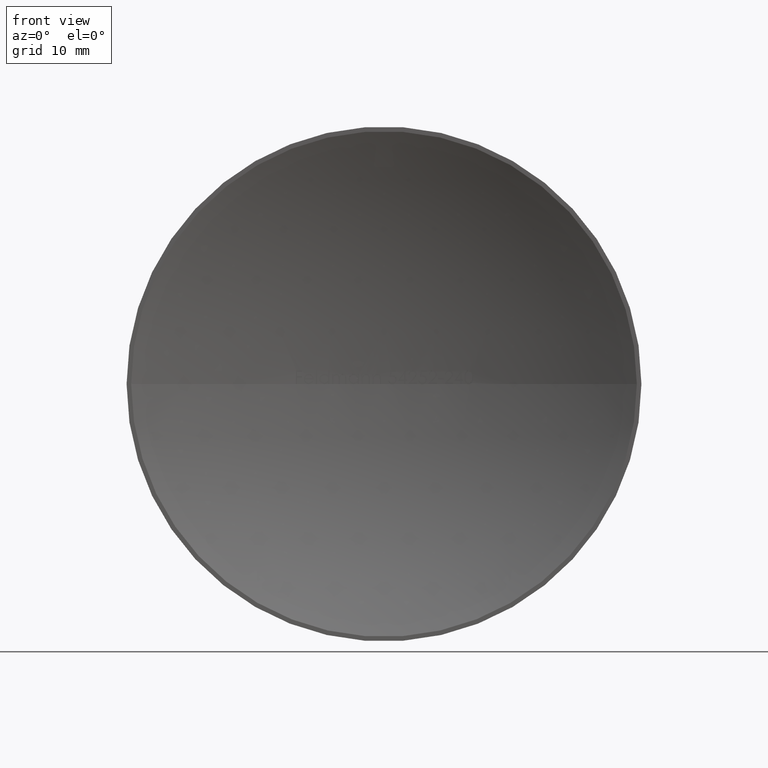
[diagram: clean part render]
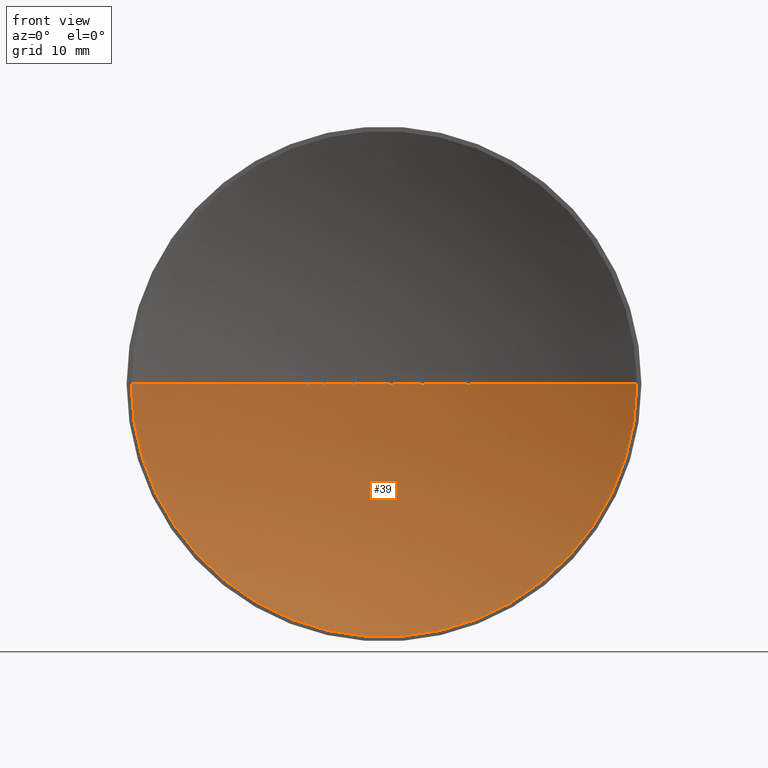
[diagram: same view with one face highlighted and labeled with its STEP entity id]
A machine part, front view. The second image highlights one B-rep face of the part: STEP entity #39.
In plain terms, the highlighted spherical surface has radius 57.3333 mm.
Its self-contained STEP definition (entity closure, byte-faithful):
#39 = ADVANCED_FACE ( 'NONE', ( #6550 ), #2754, .F. ) ;
#41 = DIRECTION ( 'NONE',  ( -1.224646799147353200E-016, 1.012314239312398700E-030, -1.000000000000000000 ) ) ;
#51 = B_SPLINE_CURVE_WITH_KNOTS ( 'NONE', 3,
 ( #5666, #1780, #10556, #6823 ),
 .UNSPECIFIED., .F., .F.,
 ( 4, 4 ),
 ( 0.8200755552327317900, 1.000000000000000000 ),
 .UNSPECIFIED. ) ;
#79 = CIRCLE ( 'NONE', #9924, 57.33333333333327900 ) ;
#135 = VERTEX_POINT ( 'NONE', #2423 ) ;
#142 = CARTESIAN_POINT ( 'NONE',  ( 1.653234614285870000E-014, -51.33333333333328600, 0.0000000000000000000 ) ) ;
#144 = CARTESIAN_POINT ( 'NONE',  ( 1.653234614285870000E-014, -51.33333333333328600, 0.0000000000000000000 ) ) ;
#164 = CARTESIAN_POINT ( 'NONE',  ( 1.653234614285870000E-014, -51.33333333333328600, 0.0000000000000000000 ) ) ;
#178 = CIRCLE ( 'NONE', #8383, 57.33333333333327900 ) ;
#187 = AXIS2_PLACEMENT_3D ( 'NONE', #6225, #4470, #12106 ) ;
#193 = DIRECTION ( 'NONE',  ( -1.000000000000000000, 0.0000000000000000000, 1.224646799147353000E-016 ) ) ;
#229 = ORIENTED_EDGE ( 'NONE', *, *, #4466, .T. ) ;
#237 = CARTESIAN_POINT ( 'NONE',  ( -1.161792200854682600, 5.988227618834947000, 0.0000000000000000000 ) ) ;
#263 = CIRCLE ( 'NONE', #8748, 57.33333333333327900 ) ;
#276 = CARTESIAN_POINT ( 'NONE',  ( 0.7312332058460994100, 5.995331647543360500, -0.02844725985276615200 ) ) ;
#293 = ORIENTED_EDGE ( 'NONE', *, *, #11744, .T. ) ;
#294 = EDGE_CURVE ( 'NONE', #9977, #135, #2118, .T. ) ;
#323 = CIRCLE ( 'NONE', #8505, 57.33333333333327900 ) ;
#342 = CARTESIAN_POINT ( 'NONE',  ( 1.653234614285870000E-014, -51.33333333333328600, 0.0000000000000000000 ) ) ;
#346 = DIRECTION ( 'NONE',  ( -1.000000000000000000, 0.0000000000000000000, 1.224646799147353000E-016 ) ) ;
#379 = CARTESIAN_POINT ( 'NONE',  ( -1.043068910256390600, 5.990510905862334000, 3.573942668229427900E-015 ) ) ;
#409 = CIRCLE ( 'NONE', #187, 25.53429066960745100 ) ;
#420 = AXIS2_PLACEMENT_3D ( 'NONE', #7171, #4276, #2235 ) ;
#461 = DIRECTION ( 'NONE',  ( 1.000000000000000000, 0.0000000000000000000, 0.0000000000000000000 ) ) ;
#505 = ORIENTED_EDGE ( 'NONE', *, *, #5393, .T. ) ;
#512 = CARTESIAN_POINT ( 'NONE',  ( -7.604482670955203400, 5.493444993938180000, -0.01679789475630296900 ) ) ;
#535 = AXIS2_PLACEMENT_3D ( 'NONE', #4750, #10582, #751 ) ;
#633 = DIRECTION ( 'NONE',  ( 0.0000000000000000000, 0.0000000000000000000, 1.000000000000000000 ) ) ;
#640 = CARTESIAN_POINT ( 'NONE',  ( -3.159460379140815800, 5.912894107119662100, -0.01013785956231215300 ) ) ;
#680 = DIRECTION ( 'NONE',  ( 1.000000000000000000, 0.0000000000000000000, 0.0000000000000000000 ) ) ;
#707 = CARTESIAN_POINT ( 'NONE',  ( 5.351028311965832200, 5.749743030118298600, 4.660440450265662700E-015 ) ) ;
#717 = VERTEX_POINT ( 'NONE', #10563 ) ;
#726 = VERTEX_POINT ( 'NONE', #813 ) ;
#737 = EDGE_CURVE ( 'NONE', #2668, #8571, #9165, .T. ) ;
#751 = DIRECTION ( 'NONE',  ( 1.000000000000000000, 0.0000000000000000000, 0.0000000000000000000 ) ) ;
#770 = DIRECTION ( 'NONE',  ( 1.000000000000000000, 0.0000000000000000000, 0.0000000000000000000 ) ) ;
#789 = CARTESIAN_POINT ( 'NONE',  ( -6.034217247596131100, 5.681568628016893100, -0.01696047008547012900 ) ) ;
#813 = CARTESIAN_POINT ( 'NONE',  ( -3.066134982638872400, 5.917951715316909200, -0.01696047008546984100 ) ) ;
#825 = VERTEX_POINT ( 'NONE', #379 ) ;
#833 = CARTESIAN_POINT ( 'NONE',  ( -5.976068151845779200, 5.687694849123642100, -0.01425468239630399900 ) ) ;
#879 = AXIS2_PLACEMENT_3D ( 'NONE', #142, #11069, #193 ) ;
#899 = EDGE_CURVE ( 'NONE', #12090, #11210, #10843, .T. ) ;
#961 = EDGE_CURVE ( 'NONE', #1879, #2668, #51, .T. ) ;
#972 = EDGE_CURVE ( 'NONE', #135, #9186, #263, .T. ) ;
#1035 = DIRECTION ( 'NONE',  ( -1.000000000000000000, 0.0000000000000000000, 1.224646799147353000E-016 ) ) ;
#1049 = DIRECTION ( 'NONE',  ( 1.000000000000000000, 0.0000000000000000000, 0.0000000000000000000 ) ) ;
#1116 = AXIS2_PLACEMENT_3D ( 'NONE', #2158, #5066, #3155 ) ;
#1127 = CARTESIAN_POINT ( 'NONE',  ( 3.315771901709419800, 5.904038791939368200, 4.673037637654739700E-015 ) ) ;
#1138 = DIRECTION ( 'NONE',  ( 1.000000000000000000, 0.0000000000000000000, 0.0000000000000000000 ) ) ;
#1164 = DIRECTION ( 'NONE',  ( 1.000000000000000000, 0.0000000000000000000, 0.0000000000000000000 ) ) ;
#1349 = ORIENTED_EDGE ( 'NONE', *, *, #7584, .T. ) ;
#1368 = CARTESIAN_POINT ( 'NONE',  ( 1.653234614285870000E-014, -51.33333333333328600, 0.0000000000000000000 ) ) ;
#1396 = EDGE_CURVE ( 'NONE', #3171, #825, #11419, .T. ) ;
#1433 = DIRECTION ( 'NONE',  ( 0.0000000000000000000, 0.0000000000000000000, 1.000000000000000000 ) ) ;
#1443 = VERTEX_POINT ( 'NONE', #4334 ) ;
#1468 = VERTEX_POINT ( 'NONE', #6382 ) ;
#1474 = DIRECTION ( 'NONE',  ( 0.0000000000000000000, 0.0000000000000000000, 1.000000000000000000 ) ) ;
#1499 = CARTESIAN_POINT ( 'NONE',  ( 1.653234614285870000E-014, -51.33333333333328600, 0.0000000000000000000 ) ) ;
#1506 = CARTESIAN_POINT ( 'NONE',  ( -7.582462536169752600, 5.496387347288661300, -0.01618432352938536900 ) ) ;
#1510 = CARTESIAN_POINT ( 'NONE',  ( -0.3137686965811757900, 5.999141411057000700, 3.529814375642770600E-015 ) ) ;
#1524 = CIRCLE ( 'NONE', #3523, 57.33333333333327900 ) ;
#1527 = VERTEX_POINT ( 'NONE', #2688 ) ;
#1557 = DIRECTION ( 'NONE',  ( -1.000000000000000000, 0.0000000000000000000, 1.224646799147353000E-016 ) ) ;
#1584 = CIRCLE ( 'NONE', #4172, 57.33333333333327900 ) ;
#1588 = VERTEX_POINT ( 'NONE', #2809 ) ;
#1603 = AXIS2_PLACEMENT_3D ( 'NONE', #9561, #10483, #8557 ) ;
#1605 = VERTEX_POINT ( 'NONE', #7720 ) ;
#1638 = ORIENTED_EDGE ( 'NONE', *, *, #1790, .T. ) ;
#1688 = EDGE_CURVE ( 'NONE', #4010, #6937, #5647, .T. ) ;
#1698 = CIRCLE ( 'NONE', #5976, 57.33333333333327900 ) ;
#1707 = CARTESIAN_POINT ( 'NONE',  ( -3.007953983192035400, 5.921039931797938700, -0.01425383591001444900 ) ) ;
#1723 = DIRECTION ( 'NONE',  ( 0.0000000000000000000, -0.0000000000000000000, 1.000000000000000000 ) ) ;
#1728 = ORIENTED_EDGE ( 'NONE', *, *, #9061, .T. ) ;
#1730 = AXIS2_PLACEMENT_3D ( 'NONE', #1499, #7290, #2397 ) ;
#1780 = CARTESIAN_POINT ( 'NONE',  ( 8.668816836237534000, 5.340870184003131600, -0.02263895338576834400 ) ) ;
#1790 = EDGE_CURVE ( 'NONE', #825, #11646, #1524, .T. ) ;
#1802 = CARTESIAN_POINT ( 'NONE',  ( -7.469798920158003100, 5.511307557889711700, 9.113124980598567300E-007 ) ) ;
#1869 = EDGE_CURVE ( 'NONE', #1527, #7026, #6335, .T. ) ;
#1879 = VERTEX_POINT ( 'NONE', #2454 ) ;
#1880 = EDGE_CURVE ( 'NONE', #11210, #11684, #8761, .T. ) ;
#1921 = DIRECTION ( 'NONE',  ( -1.224646799147353200E-016, 1.012314239312398700E-030, -1.000000000000000000 ) ) ;
#1926 = VERTEX_POINT ( 'NONE', #2669 ) ;
#1927 = CARTESIAN_POINT ( 'NONE',  ( -5.918629591347208700, 5.693690583461012100, -0.005862526848586527300 ) ) ;
#1981 = ORIENTED_EDGE ( 'NONE', *, *, #5788, .T. ) ;
#2040 = ORIENTED_EDGE ( 'NONE', *, *, #6532, .T. ) ;
#2080 = CARTESIAN_POINT ( 'NONE',  ( 8.446823762142528800, 5.374380510363496700, -0.02265047892888738200 ) ) ;
#2083 = AXIS2_PLACEMENT_3D ( 'NONE', #4403, #8407, #8332 ) ;
#2101 = DIRECTION ( 'NONE',  ( 0.0000000000000000000, -0.0000000000000000000, 1.000000000000000000 ) ) ;
#2118 = CIRCLE ( 'NONE', #2956, 57.33333333333327900 ) ;
#2120 = DIRECTION ( 'NONE',  ( 0.0000000000000000000, 0.0000000000000000000, 1.000000000000000000 ) ) ;
#2131 = CARTESIAN_POINT ( 'NONE',  ( 3.921275447981452400, 5.865745812547226400, -0.03097586369451882400 ) ) ;
#2135 = AXIS2_PLACEMENT_3D ( 'NONE', #2663, #5678, #9567 ) ;
#2158 = CARTESIAN_POINT ( 'NONE',  ( 1.653234614285870000E-014, -51.33333333333328600, 0.0000000000000000000 ) ) ;
#2208 = ORIENTED_EDGE ( 'NONE', *, *, #4576, .F. ) ;
#2213 = AXIS2_PLACEMENT_3D ( 'NONE', #342, #5093, #5218 ) ;
#2234 = ORIENTED_EDGE ( 'NONE', *, *, #11734, .T. ) ;
#2235 = DIRECTION ( 'NONE',  ( 1.000000000000000000, 0.0000000000000000000, 0.0000000000000000000 ) ) ;
#2265 = CARTESIAN_POINT ( 'NONE',  ( 1.653234614285870000E-014, -51.33333333333328600, 0.0000000000000000000 ) ) ;
#2345 = DIRECTION ( 'NONE',  ( 0.0000000000000000000, -0.0000000000000000000, 1.000000000000000000 ) ) ;
#2355 = CARTESIAN_POINT ( 'NONE',  ( 1.653234614285870000E-014, -51.33333333333328600, 0.0000000000000000000 ) ) ;
#2366 = VERTEX_POINT ( 'NONE', #4329 ) ;
#2388 = DIRECTION ( 'NONE',  ( 0.0000000000000000000, -0.0000000000000000000, 1.000000000000000000 ) ) ;
#2397 = DIRECTION ( 'NONE',  ( -1.000000000000000000, 0.0000000000000000000, 1.224646799147353000E-016 ) ) ;
#2403 = ORIENTED_EDGE ( 'NONE', *, *, #4062, .T. ) ;
#2423 = CARTESIAN_POINT ( 'NONE',  ( -3.807625534188019900, 5.873424125051853300, 4.670538160734021600E-015 ) ) ;
#2450 = EDGE_CURVE ( 'NONE', #5903, #8798, #11263, .T. ) ;
#2454 = CARTESIAN_POINT ( 'NONE',  ( 8.719384699431110200, 5.333088974589016700, 1.980577519826832300E-005 ) ) ;
#2482 = CARTESIAN_POINT ( 'NONE',  ( -7.492207298127453900, 5.508363085131954100, -0.005843818070094668500 ) ) ;
#2495 = CARTESIAN_POINT ( 'NONE',  ( 1.653234614285870000E-014, -51.33333333333328600, 0.0000000000000000000 ) ) ;
#2502 = CARTESIAN_POINT ( 'NONE',  ( -5.249265491452979000, 5.759190896300715700, 0.0000000000000000000 ) ) ;
#2505 = ORIENTED_EDGE ( 'NONE', *, *, #4980, .F. ) ;
#2522 = CIRCLE ( 'NONE', #4129, 57.33333333333327900 ) ;
#2531 = CARTESIAN_POINT ( 'NONE',  ( 3.798088335103602600, 5.874057395939255200, -0.03111810660712349300 ) ) ;
#2604 = EDGE_CURVE ( 'NONE', #6401, #8959, #10948, .T. ) ;
#2636 = DIRECTION ( 'NONE',  ( -1.000000000000000000, 0.0000000000000000000, 1.224646799147353000E-016 ) ) ;
#2658 = CARTESIAN_POINT ( 'NONE',  ( 3.713775423642146300, 5.879599334683606800, -0.01180913835394132400 ) ) ;
#2663 = CARTESIAN_POINT ( 'NONE',  ( 1.653234614285870000E-014, -51.33333333333328600, 0.0000000000000000000 ) ) ;
#2665 = B_SPLINE_CURVE_WITH_KNOTS ( 'NONE', 3,
 ( #5549, #3538, #2531, #5426, #2658, #9473 ),
 .UNSPECIFIED., .F., .F.,
 ( 4, 2, 4 ),
 ( 0.0000000000000000000, 0.1424415182855955900, 0.2848830365711911800 ),
 .UNSPECIFIED. ) ;
#2668 = VERTEX_POINT ( 'NONE', #11721 ) ;
#2669 = CARTESIAN_POINT ( 'NONE',  ( -4.469083867521353800, 5.825553993977110600, 4.666629893880991200E-015 ) ) ;
#2679 = CARTESIAN_POINT ( 'NONE',  ( 1.653234614285870000E-014, -51.33333333333328600, 0.0000000000000000000 ) ) ;
#2688 = CARTESIAN_POINT ( 'NONE',  ( -6.034217247596131100, 5.681568628016893100, -0.01696047008547012900 ) ) ;
#2711 = VERTEX_POINT ( 'NONE', #7411 ) ;
#2754 = SPHERICAL_SURFACE ( 'NONE', #11908, 57.33333333333327900 ) ;
#2809 = CARTESIAN_POINT ( 'NONE',  ( -1.433159722222207400, 5.982084874350625200, 4.679409563322135600E-015 ) ) ;
#2890 = CIRCLE ( 'NONE', #1730, 57.33333333333327900 ) ;
#2906 = VERTEX_POINT ( 'NONE', #10970 ) ;
#2952 = EDGE_CURVE ( 'NONE', #717, #9666, #2890, .T. ) ;
#2956 = AXIS2_PLACEMENT_3D ( 'NONE', #6498, #1723, #8497 ) ;
#2987 = CARTESIAN_POINT ( 'NONE',  ( 8.397071169437156300, 5.381746657123908800, 7.836621548941007300E-006 ) ) ;
#2993 = CARTESIAN_POINT ( 'NONE',  ( 1.653234614285870000E-014, -51.33333333333328600, 0.0000000000000000000 ) ) ;
#3057 = CARTESIAN_POINT ( 'NONE',  ( -6.894431089743577000, 5.583956931224123300, 4.221621482998533400E-016 ) ) ;
#3093 = CIRCLE ( 'NONE', #4100, 57.33333333333327900 ) ;
#3131 = CARTESIAN_POINT ( 'NONE',  ( 0.9287030781073941600, 5.992482745278757700, -0.02055933932380099600 ) ) ;
#3133 = CARTESIAN_POINT ( 'NONE',  ( 3.687733152605436000, 5.881277782898524500, 1.028980638969416600E-005 ) ) ;
#3155 = DIRECTION ( 'NONE',  ( 1.000000000000000000, 0.0000000000000000000, 0.0000000000000000000 ) ) ;
#3169 = CARTESIAN_POINT ( 'NONE',  ( 3.889343001239720100, 5.867926907310991400, -0.03361015335054331300 ) ) ;
#3171 = VERTEX_POINT ( 'NONE', #10512 ) ;
#3172 = CARTESIAN_POINT ( 'NONE',  ( 0.8666966990796366500, 5.993448895973643600, -0.03126080610518458500 ) ) ;
#3213 = CARTESIAN_POINT ( 'NONE',  ( 0.9897537977296951800, 5.991456168905108000, -9.322348768894757900E-007 ) ) ;
#3236 = DIRECTION ( 'NONE',  ( 1.000000000000000000, 0.0000000000000000000, 0.0000000000000000000 ) ) ;
#3267 = CIRCLE ( 'NONE', #6712, 57.33333333333327900 ) ;
#3341 = DIRECTION ( 'NONE',  ( 0.0000000000000000000, 0.0000000000000000000, 1.000000000000000000 ) ) ;
#3350 = CARTESIAN_POINT ( 'NONE',  ( -7.612335987580110900, 5.492392920413369200, -0.01696047008547008400 ) ) ;
#3390 = CARTESIAN_POINT ( 'NONE',  ( -6.167843596847782300, 5.667270206332852400, -3.493595557831355000E-006 ) ) ;
#3404 = CARTESIAN_POINT ( 'NONE',  ( 1.653234614285870000E-014, -51.33333333333328600, 0.0000000000000000000 ) ) ;
#3433 = CARTESIAN_POINT ( 'NONE',  ( -7.711038986048578200, 5.479101125851348000, -0.01015810274408613300 ) ) ;
#3449 = EDGE_CURVE ( 'NONE', #8124, #9727, #11092, .T. ) ;
#3451 = VERTEX_POINT ( 'NONE', #1127 ) ;
#3466 = VERTEX_POINT ( 'NONE', #4061 ) ;
#3468 = CARTESIAN_POINT ( 'NONE',  ( -7.469798920158003100, 5.511307557889711700, 9.113124980598567300E-007 ) ) ;
#3501 = VERTEX_POINT ( 'NONE', #3133 ) ;
#3523 = AXIS2_PLACEMENT_3D ( 'NONE', #4360, #1474, #7262 ) ;
#3538 = CARTESIAN_POINT ( 'NONE',  ( 3.823923664024558600, 5.872335828460014000, -0.03330238033578124300 ) ) ;
#3545 = CARTESIAN_POINT ( 'NONE',  ( 0.8021772335737316100, 5.994377873088157400, -0.03392094017094008500 ) ) ;
#3547 = ORIENTED_EDGE ( 'NONE', *, *, #899, .T. ) ;
#3702 = AXIS2_PLACEMENT_3D ( 'NONE', #2495, #5317, #4364 ) ;
#3743 = CARTESIAN_POINT ( 'NONE',  ( 1.653234614285870000E-014, -51.33333333333328600, 0.0000000000000000000 ) ) ;
#3753 = CARTESIAN_POINT ( 'NONE',  ( -3.037851743646049000, 5.919460699057497200, -0.01612962541316521900 ) ) ;
#3773 = DIRECTION ( 'NONE',  ( -1.000000000000000000, 0.0000000000000000000, 1.224646799147353000E-016 ) ) ;
#3777 = CIRCLE ( 'NONE', #5362, 57.33333333333327900 ) ;
#3965 = VERTEX_POINT ( 'NONE', #10289 ) ;
#3967 = EDGE_CURVE ( 'NONE', #11374, #3996, #10331, .T. ) ;
#3996 = VERTEX_POINT ( 'NONE', #4496 ) ;
#4010 = VERTEX_POINT ( 'NONE', #2502 ) ;
#4030 = ORIENTED_EDGE ( 'NONE', *, *, #4251, .T. ) ;
#4038 = CIRCLE ( 'NONE', #4797, 57.33333333333327900 ) ;
#4061 = CARTESIAN_POINT ( 'NONE',  ( -8.912727029914513800, 5.303001364467700500, 1.091494262885950100E-015 ) ) ;
#4062 = EDGE_CURVE ( 'NONE', #4162, #10902, #6678, .T. ) ;
#4098 = DIRECTION ( 'NONE',  ( 0.0000000000000000000, -0.0000000000000000000, 1.000000000000000000 ) ) ;
#4100 = AXIS2_PLACEMENT_3D ( 'NONE', #8068, #11990, #1138 ) ;
#4129 = AXIS2_PLACEMENT_3D ( 'NONE', #3743, #10604, #6810 ) ;
#4151 = DIRECTION ( 'NONE',  ( 1.000000000000000000, 0.0000000000000000000, 0.0000000000000000000 ) ) ;
#4162 = VERTEX_POINT ( 'NONE', #707 ) ;
#4172 = AXIS2_PLACEMENT_3D ( 'NONE', #2679, #10541, #2636 ) ;
#4174 = DIRECTION ( 'NONE',  ( 0.0000000000000000000, 0.0000000000000000000, 1.000000000000000000 ) ) ;
#4190 = VERTEX_POINT ( 'NONE', #5690 ) ;
#4198 = CARTESIAN_POINT ( 'NONE',  ( 1.653234614285870000E-014, -51.33333333333328600, 0.0000000000000000000 ) ) ;
#4214 = VERTEX_POINT ( 'NONE', #10740 ) ;
#4220 = DIRECTION ( 'NONE',  ( 1.000000000000000000, 0.0000000000000000000, 0.0000000000000000000 ) ) ;
#4251 = EDGE_CURVE ( 'NONE', #717, #11759, #4919, .T. ) ;
#4276 = DIRECTION ( 'NONE',  ( 0.0000000000000000000, -0.0000000000000000000, 1.000000000000000000 ) ) ;
#4282 = DIRECTION ( 'NONE',  ( -1.000000000000000000, 8.229850909285325200E-015, 0.0000000000000000000 ) ) ;
#4302 = CARTESIAN_POINT ( 'NONE',  ( 0.6348561566098356300, 5.996484899438787200, 8.345861521853830000E-006 ) ) ;
#4323 = EDGE_CURVE ( 'NONE', #7026, #6401, #3777, .T. ) ;
#4329 = CARTESIAN_POINT ( 'NONE',  ( -25.53429066960701400, 4.156172542964335300E-013, 0.0000000000000000000 ) ) ;
#4334 = CARTESIAN_POINT ( 'NONE',  ( 6.080328525641042400, 5.676672070379671800, -1.177347378342688400E-015 ) ) ;
#4360 = CARTESIAN_POINT ( 'NONE',  ( 1.653234614285870000E-014, -51.33333333333328600, 0.0000000000000000000 ) ) ;
#4364 = DIRECTION ( 'NONE',  ( 1.000000000000000000, 0.0000000000000000000, 0.0000000000000000000 ) ) ;
#4381 = CARTESIAN_POINT ( 'NONE',  ( -5.895903878686825200, 5.696039955514922100, -3.622036980998579100E-006 ) ) ;
#4392 = CARTESIAN_POINT ( 'NONE',  ( -7.597593965060847100, 5.494366217599243800, -0.01662984858171082500 ) ) ;
#4403 = CARTESIAN_POINT ( 'NONE',  ( 1.653234614285870000E-014, -51.33333333333328600, 0.0000000000000000000 ) ) ;
#4412 = DIRECTION ( 'NONE',  ( 1.000000000000000000, 0.0000000000000000000, 0.0000000000000000000 ) ) ;
#4466 = EDGE_CURVE ( 'NONE', #7995, #3501, #2665, .T. ) ;
#4467 = ORIENTED_EDGE ( 'NONE', *, *, #6929, .T. ) ;
#4470 = DIRECTION ( 'NONE',  ( -8.266173071429340400E-015, -1.000000000000000000, -0.0000000000000000000 ) ) ;
#4489 = EDGE_CURVE ( 'NONE', #4214, #10902, #9732, .T. ) ;
#4496 = CARTESIAN_POINT ( 'NONE',  ( -2.927801677909694700, 5.925195093583055500, -1.367939991322960700E-006 ) ) ;
#4576 = EDGE_CURVE ( 'NONE', #5451, #8571, #79, .T. ) ;
#4589 = AXIS2_PLACEMENT_3D ( 'NONE', #6871, #7844, #4962 ) ;
#4641 = DIRECTION ( 'NONE',  ( 0.0000000000000000000, 0.0000000000000000000, 1.000000000000000000 ) ) ;
#4647 = ORIENTED_EDGE ( 'NONE', *, *, #737, .T. ) ;
#4750 = CARTESIAN_POINT ( 'NONE',  ( 1.653234614285870000E-014, -51.33333333333328600, 0.0000000000000000000 ) ) ;
#4797 = AXIS2_PLACEMENT_3D ( 'NONE', #2993, #11782, #4897 ) ;
#4801 = CIRCLE ( 'NONE', #7469, 57.33333333333327900 ) ;
#4830 = AXIS2_PLACEMENT_3D ( 'NONE', #1368, #2388, #6340 ) ;
#4871 = AXIS2_PLACEMENT_3D ( 'NONE', #10393, #11361, #770 ) ;
#4895 = DIRECTION ( 'NONE',  ( 0.0000000000000000000, -0.0000000000000000000, 1.000000000000000000 ) ) ;
#4897 = DIRECTION ( 'NONE',  ( 1.000000000000000000, 0.0000000000000000000, 0.0000000000000000000 ) ) ;
#4919 = B_SPLINE_CURVE_WITH_KNOTS ( 'NONE', 3,
 ( #3213, #7925, #3131, #3172, #9984, #9048 ),
 .UNSPECIFIED., .F., .F.,
 ( 4, 2, 4 ),
 ( 0.7374072263976035900, 0.8687036131988017400, 1.000000000000000000 ),
 .UNSPECIFIED. ) ;
#4926 = AXIS2_PLACEMENT_3D ( 'NONE', #6173, #2345, #12180 ) ;
#4962 = DIRECTION ( 'NONE',  ( 1.000000000000000000, 0.0000000000000000000, 0.0000000000000000000 ) ) ;
#4980 = EDGE_CURVE ( 'NONE', #3451, #3501, #8198, .T. ) ;
#5063 = ORIENTED_EDGE ( 'NONE', *, *, #3967, .T. ) ;
#5066 = DIRECTION ( 'NONE',  ( 0.0000000000000000000, -0.0000000000000000000, 1.000000000000000000 ) ) ;
#5093 = DIRECTION ( 'NONE',  ( 0.0000000000000000000, -0.0000000000000000000, 1.000000000000000000 ) ) ;
#5104 = ORIENTED_EDGE ( 'NONE', *, *, #10348, .T. ) ;
#5115 = ORIENTED_EDGE ( 'NONE', *, *, #11087, .T. ) ;
#5137 = EDGE_CURVE ( 'NONE', #2366, #5532, #409, .T. ) ;
#5168 = CARTESIAN_POINT ( 'NONE',  ( 0.7712334947786229100, 5.994804925029086500, -0.03272301506468869300 ) ) ;
#5218 = DIRECTION ( 'NONE',  ( 1.000000000000000000, 0.0000000000000000000, 0.0000000000000000000 ) ) ;
#5223 = CARTESIAN_POINT ( 'NONE',  ( 1.653234614285870000E-014, -51.33333333333328600, 0.0000000000000000000 ) ) ;
#5249 = AXIS2_PLACEMENT_3D ( 'NONE', #12117, #1433, #6103 ) ;
#5255 = ORIENTED_EDGE ( 'NONE', *, *, #5309, .T. ) ;
#5266 = ORIENTED_EDGE ( 'NONE', *, *, #10113, .T. ) ;
#5282 = ORIENTED_EDGE ( 'NONE', *, *, #2952, .F. ) ;
#5309 = EDGE_CURVE ( 'NONE', #6937, #12585, #11078, .T. ) ;
#5317 = DIRECTION ( 'NONE',  ( 0.0000000000000000000, 0.0000000000000000000, 1.000000000000000000 ) ) ;
#5341 = DIRECTION ( 'NONE',  ( 0.0000000000000000000, -0.0000000000000000000, 1.000000000000000000 ) ) ;
#5362 = AXIS2_PLACEMENT_3D ( 'NONE', #2265, #5341, #461 ) ;
#5363 = ORIENTED_EDGE ( 'NONE', *, *, #10674, .T. ) ;
#5375 = ORIENTED_EDGE ( 'NONE', *, *, #12387, .T. ) ;
#5388 = CARTESIAN_POINT ( 'NONE',  ( -2.552550747863233200, 5.943150460547494500, 4.676230836306089100E-015 ) ) ;
#5393 = EDGE_CURVE ( 'NONE', #3466, #2366, #2522, .T. ) ;
#5426 = CARTESIAN_POINT ( 'NONE',  ( 3.739720363266749700, 5.877907596545425900, -0.02000643409942518700 ) ) ;
#5448 = CARTESIAN_POINT ( 'NONE',  ( 1.653234614285870000E-014, -51.33333333333328600, 0.0000000000000000000 ) ) ;
#5451 = VERTEX_POINT ( 'NONE', #7607 ) ;
#5481 = EDGE_CURVE ( 'NONE', #1605, #4190, #6324, .T. ) ;
#5532 = VERTEX_POINT ( 'NONE', #7945 ) ;
#5549 = CARTESIAN_POINT ( 'NONE',  ( 3.855061848958352100, 5.870236997736339100, -0.03392094017094004300 ) ) ;
#5565 = EDGE_CURVE ( 'NONE', #3451, #8798, #4038, .T. ) ;
#5647 = CIRCLE ( 'NONE', #2213, 57.33333333333327900 ) ;
#5666 = CARTESIAN_POINT ( 'NONE',  ( 8.719384699431110200, 5.333088974589016700, 1.980577519826832300E-005 ) ) ;
#5667 = ORIENTED_EDGE ( 'NONE', *, *, #5137, .T. ) ;
#5678 = DIRECTION ( 'NONE',  ( 0.0000000000000000000, -0.0000000000000000000, 1.000000000000000000 ) ) ;
#5689 = CARTESIAN_POINT ( 'NONE',  ( -5.895903878686825200, 5.696039955514922100, -3.622036980998579100E-006 ) ) ;
#5690 = CARTESIAN_POINT ( 'NONE',  ( -2.162459935897421000, 5.959204384389980900, 4.677541528735920200E-015 ) ) ;
#5698 = CIRCLE ( 'NONE', #7598, 57.33333333333327900 ) ;
#5736 = CARTESIAN_POINT ( 'NONE',  ( -6.005963691332803800, 5.684553059635747200, -0.01613117415199355100 ) ) ;
#5764 = CARTESIAN_POINT ( 'NONE',  ( -3.199830973127824500, 5.910637360139833000, 3.061734799137938900E-006 ) ) ;
#5788 = EDGE_CURVE ( 'NONE', #11684, #1468, #4801, .T. ) ;
#5820 = AXIS2_PLACEMENT_3D ( 'NONE', #9789, #6879, #1049 ) ;
#5828 = ORIENTED_EDGE ( 'NONE', *, *, #8397, .T. ) ;
#5834 = CARTESIAN_POINT ( 'NONE',  ( 8.498426204162939300, 5.366670163939390100, -0.03291158952019875000 ) ) ;
#5833 = CIRCLE ( 'NONE', #420, 57.33333333333327900 ) ;
#5886 = VERTEX_POINT ( 'NONE', #6031 ) ;
#5903 = VERTEX_POINT ( 'NONE', #6506 ) ;
#5929 = EDGE_CURVE ( 'NONE', #1879, #5532, #10883, .T. ) ;
#5976 = AXIS2_PLACEMENT_3D ( 'NONE', #2355, #10975, #4220 ) ;
#5977 = AXIS2_PLACEMENT_3D ( 'NONE', #6872, #2101, #8932 ) ;
#5981 = VERTEX_POINT ( 'NONE', #9913 ) ;
#6012 = CARTESIAN_POINT ( 'NONE',  ( 4.042675533201415500, 5.857294205594805600, 2.843901964764307800E-006 ) ) ;
#6031 = CARTESIAN_POINT ( 'NONE',  ( -5.130542200854686800, 5.769982225715943400, 4.662092841339392200E-015 ) ) ;
#6044 = EDGE_CURVE ( 'NONE', #5451, #5981, #7068, .T. ) ;
#6103 = DIRECTION ( 'NONE',  ( 1.000000000000000000, 0.0000000000000000000, 0.0000000000000000000 ) ) ;
#6123 = CIRCLE ( 'NONE', #6644, 57.33333333333327900 ) ;
#6138 = CARTESIAN_POINT ( 'NONE',  ( 4.452123397435921800, 5.826877551206918900, 5.782411586589356700E-016 ) ) ;
#6167 = CARTESIAN_POINT ( 'NONE',  ( 1.653234614285870000E-014, -51.33333333333328600, 0.0000000000000000000 ) ) ;
#6173 = CARTESIAN_POINT ( 'NONE',  ( 1.653234614285870000E-014, -51.33333333333328600, 0.0000000000000000000 ) ) ;
#6200 = DIRECTION ( 'NONE',  ( 0.0000000000000000000, 0.0000000000000000000, 1.000000000000000000 ) ) ;
#6225 = CARTESIAN_POINT ( 'NONE',  ( -4.959703842857429100E-014, 2.038300084272748300E-013, 0.0000000000000000000 ) ) ;
#6275 = CARTESIAN_POINT ( 'NONE',  ( -6.083211276882028800, 5.676383701823501000, -0.01563043895966663400 ) ) ;
#6321 = CARTESIAN_POINT ( 'NONE',  ( -7.664431388659642700, 5.485414618566784900, -0.01574434959862587900 ) ) ;
#6324 = CIRCLE ( 'NONE', #1116, 57.33333333333327900 ) ;
#6335 = B_SPLINE_CURVE_WITH_KNOTS ( 'NONE', 3,
 ( #11120, #6275, #8324, #3390 ),
 .UNSPECIFIED., .F., .F.,
 ( 4, 4 ),
 ( 0.0000000000000000000, 0.1697995196756730000 ),
 .UNSPECIFIED. ) ;
#6336 = ORIENTED_EDGE ( 'NONE', *, *, #294, .T. ) ;
#6340 = DIRECTION ( 'NONE',  ( 1.000000000000000000, 0.0000000000000000000, 0.0000000000000000000 ) ) ;
#6343 = AXIS2_PLACEMENT_3D ( 'NONE', #10798, #41, #9951 ) ;
#6382 = CARTESIAN_POINT ( 'NONE',  ( -8.794003739316224300, 5.321557094095805200, 4.546066364004157800E-015 ) ) ;
#6393 = CARTESIAN_POINT ( 'NONE',  ( 6.979233440170959900, 5.573620650329421400, 4.646061269687885000E-015 ) ) ;
#6395 = CARTESIAN_POINT ( 'NONE',  ( -7.516339268415931600, 5.505176845427800300, -0.01038009250465426700 ) ) ;
#6401 = VERTEX_POINT ( 'NONE', #7665 ) ;
#6435 = EDGE_CURVE ( 'NONE', #8124, #3965, #178, .T. ) ;
#6441 = CIRCLE ( 'NONE', #2135, 57.33333333333327900 ) ;
#6498 = CARTESIAN_POINT ( 'NONE',  ( 1.653234614285870000E-014, -51.33333333333328600, 0.0000000000000000000 ) ) ;
#6506 = CARTESIAN_POINT ( 'NONE',  ( 2.145499465811979700, 5.959842029473278100, 3.376821238383533800E-015 ) ) ;
#6532 = EDGE_CURVE ( 'NONE', #11759, #3965, #11080, .T. ) ;
#6550 = FACE_OUTER_BOUND ( 'NONE', #8793, .T. ) ;
#6561 = CARTESIAN_POINT ( 'NONE',  ( -3.114872071989231100, 5.915341956342414800, -0.01563741405676772100 ) ) ;
#6568 = CARTESIAN_POINT ( 'NONE',  ( -3.050871226356836300, 5.918769281912206600, -0.01660664198331175300 ) ) ;
#6644 = AXIS2_PLACEMENT_3D ( 'NONE', #144, #4098, #6985 ) ;
#6678 = CIRCLE ( 'NONE', #535, 57.33333333333327900 ) ;
#6712 = AXIS2_PLACEMENT_3D ( 'NONE', #8501, #7630, #3773 ) ;
#6782 = CARTESIAN_POINT ( 'NONE',  ( 1.653234614285870000E-014, -51.33333333333328600, 0.0000000000000000000 ) ) ;
#6808 = CARTESIAN_POINT ( 'NONE',  ( -5.520633012820491500, 5.733589855575903700, 4.659121654699032600E-015 ) ) ;
#6810 = DIRECTION ( 'NONE',  ( 1.000000000000000000, 0.0000000000000000000, 0.0000000000000000000 ) ) ;
#6823 = CARTESIAN_POINT ( 'NONE',  ( 8.557882194845097600, 5.357694288505397800, -0.03392094017093969000 ) ) ;
#6867 = ORIENTED_EDGE ( 'NONE', *, *, #5565, .T. ) ;
#6871 = CARTESIAN_POINT ( 'NONE',  ( 1.653234614285870000E-014, -51.33333333333328600, 0.0000000000000000000 ) ) ;
#6872 = CARTESIAN_POINT ( 'NONE',  ( 1.653234614285870000E-014, -51.33333333333328600, 0.0000000000000000000 ) ) ;
#6879 = DIRECTION ( 'NONE',  ( 0.0000000000000000000, 0.0000000000000000000, 1.000000000000000000 ) ) ;
#6929 = EDGE_CURVE ( 'NONE', #12585, #7077, #9221, .T. ) ;
#6937 = VERTEX_POINT ( 'NONE', #6808 ) ;
#6956 = CARTESIAN_POINT ( 'NONE',  ( 2.026776175213691900, 5.964164774757703600, -1.241042477781482200E-016 ) ) ;
#6985 = DIRECTION ( 'NONE',  ( 1.000000000000000000, 0.0000000000000000000, 0.0000000000000000000 ) ) ;
#7026 = VERTEX_POINT ( 'NONE', #12178 ) ;
#7068 = CIRCLE ( 'NONE', #7628, 57.33333333333327900 ) ;
#7073 = AXIS2_PLACEMENT_3D ( 'NONE', #10717, #4895, #11703 ) ;
#7077 = VERTEX_POINT ( 'NONE', #4381 ) ;
#7171 = CARTESIAN_POINT ( 'NONE',  ( 1.653234614285870000E-014, -51.33333333333328600, 0.0000000000000000000 ) ) ;
#7200 = CARTESIAN_POINT ( 'NONE',  ( 0.6620934234628206300, 5.996183371208920800, -0.01235873000621692300 ) ) ;
#7247 = ORIENTED_EDGE ( 'NONE', *, *, #972, .T. ) ;
#7262 = DIRECTION ( 'NONE',  ( 1.000000000000000000, 0.0000000000000000000, 0.0000000000000000000 ) ) ;
#7290 = DIRECTION ( 'NONE',  ( -1.224646799147353200E-016, 1.012314239312398700E-030, -1.000000000000000000 ) ) ;
#7331 = CARTESIAN_POINT ( 'NONE',  ( -7.552291660620974200, 5.500406125020459700, -0.01445536415254127300 ) ) ;
#7388 = DIRECTION ( 'NONE',  ( -1.224646799147353200E-016, 1.012314239312398700E-030, -1.000000000000000000 ) ) ;
#7411 = CARTESIAN_POINT ( 'NONE',  ( -4.587807158119645100, 5.816147299398718200, 2.809221675648570800E-016 ) ) ;
#7469 = AXIS2_PLACEMENT_3D ( 'NONE', #3404, #8416, #4412 ) ;
#7491 = CARTESIAN_POINT ( 'NONE',  ( -2.973107850479765400, 5.922864477450278100, -0.01009493797467990500 ) ) ;
#7541 = CARTESIAN_POINT ( 'NONE',  ( -3.926348824786313400, 5.865398261145311500, 2.404195260305570500E-016 ) ) ;
#7581 = CARTESIAN_POINT ( 'NONE',  ( 4.869489480805846000E-013, 5.999999999999991100, 0.0000000000000000000 ) ) ;
#7584 = EDGE_CURVE ( 'NONE', #1588, #1605, #11319, .T. ) ;
#7596 = AXIS2_PLACEMENT_3D ( 'NONE', #5448, #7388, #1557 ) ;
#7598 = AXIS2_PLACEMENT_3D ( 'NONE', #10433, #633, #12478 ) ;
#7607 = CARTESIAN_POINT ( 'NONE',  ( 7.844217414529931700, 5.460850913512713200, 2.997321009978280100E-015 ) ) ;
#7615 = CARTESIAN_POINT ( 'NONE',  ( -2.927801677909694700, 5.925195093583055500, -1.367939991322960700E-006 ) ) ;
#7628 = AXIS2_PLACEMENT_3D ( 'NONE', #4198, #6200, #4151 ) ;
#7630 = DIRECTION ( 'NONE',  ( -1.224646799147353200E-016, 1.012314239312398700E-030, -1.000000000000000000 ) ) ;
#7665 = CARTESIAN_POINT ( 'NONE',  ( -6.775707799145283900, 5.598212359118330800, 3.900944203547688000E-015 ) ) ;
#7689 = AXIS2_PLACEMENT_3D ( 'NONE', #12057, #3341, #8138 ) ;
#7695 = DIRECTION ( 'NONE',  ( 0.0000000000000000000, 0.0000000000000000000, 1.000000000000000000 ) ) ;
#7720 = CARTESIAN_POINT ( 'NONE',  ( -1.551883012820497900, 5.978993178732367600, 9.502542821511865400E-017 ) ) ;
#7786 = CIRCLE ( 'NONE', #7689, 57.33333333333327900 ) ;
#7844 = DIRECTION ( 'NONE',  ( 0.0000000000000000000, 0.0000000000000000000, 1.000000000000000000 ) ) ;
#7925 = CARTESIAN_POINT ( 'NONE',  ( 0.9605258884966155800, 5.991960871163951400, -0.01174398118236515800 ) ) ;
#7945 = CARTESIAN_POINT ( 'NONE',  ( 25.53429066960740500, -7.089875703895476300E-015, -3.127048733703229500E-015 ) ) ;
#7959 = CARTESIAN_POINT ( 'NONE',  ( 4.013263116163694900, 5.859373367363377700, -0.01183058684958191900 ) ) ;
#7995 = VERTEX_POINT ( 'NONE', #11814 ) ;
#7997 = EDGE_CURVE ( 'NONE', #9186, #1926, #5833, .T. ) ;
#8068 = CARTESIAN_POINT ( 'NONE',  ( 1.653234614285870000E-014, -51.33333333333328600, 0.0000000000000000000 ) ) ;
#8124 = VERTEX_POINT ( 'NONE', #7581 ) ;
#8138 = DIRECTION ( 'NONE',  ( 1.000000000000000000, 0.0000000000000000000, 0.0000000000000000000 ) ) ;
#8149 = ORIENTED_EDGE ( 'NONE', *, *, #4489, .F. ) ;
#8198 = CIRCLE ( 'NONE', #879, 57.33333333333327900 ) ;
#8240 = DIRECTION ( 'NONE',  ( -1.224646799147353200E-016, 1.012314239312398700E-030, -1.000000000000000000 ) ) ;
#8314 = CARTESIAN_POINT ( 'NONE',  ( -7.612335987580110900, 5.492392920413369200, -0.01696047008547008400 ) ) ;
#8323 = ORIENTED_EDGE ( 'NONE', *, *, #11723, .T. ) ;
#8324 = CARTESIAN_POINT ( 'NONE',  ( -6.127763995601371900, 5.671607195001192800, -0.01005712494693265800 ) ) ;
#8332 = DIRECTION ( 'NONE',  ( 1.000000000000000000, 0.0000000000000000000, 0.0000000000000000000 ) ) ;
#8383 = AXIS2_PLACEMENT_3D ( 'NONE', #6782, #1921, #1035 ) ;
#8397 = EDGE_CURVE ( 'NONE', #5903, #9666, #5698, .T. ) ;
#8407 = DIRECTION ( 'NONE',  ( 0.0000000000000000000, -0.0000000000000000000, 1.000000000000000000 ) ) ;
#8413 = EDGE_CURVE ( 'NONE', #9133, #11374, #323, .T. ) ;
#8414 = B_SPLINE_CURVE_WITH_KNOTS ( 'NONE', 3,
 ( #8608, #6561, #640, #11406 ),
 .UNSPECIFIED., .F., .F.,
 ( 4, 4 ),
 ( 0.0000000000000000000, 0.1700437792253562700 ),
 .UNSPECIFIED. ) ;
#8416 = DIRECTION ( 'NONE',  ( 0.0000000000000000000, -0.0000000000000000000, 1.000000000000000000 ) ) ;
#8497 = DIRECTION ( 'NONE',  ( 1.000000000000000000, 0.0000000000000000000, 0.0000000000000000000 ) ) ;
#8501 = CARTESIAN_POINT ( 'NONE',  ( 1.653234614285870000E-014, -51.33333333333328600, 0.0000000000000000000 ) ) ;
#8505 = AXIS2_PLACEMENT_3D ( 'NONE', #9377, #4641, #680 ) ;
#8557 = DIRECTION ( 'NONE',  ( -1.000000000000000000, 0.0000000000000000000, 1.224646799147353000E-016 ) ) ;
#8571 = VERTEX_POINT ( 'NONE', #2987 ) ;
#8579 = B_SPLINE_CURVE_WITH_KNOTS ( 'NONE', 3,
 ( #6012, #7959, #10900, #2131, #3169, #10360 ),
 .UNSPECIFIED., .F., .F.,
 ( 4, 2, 4 ),
 ( 0.7380037807075220400, 0.8690018903537610800, 1.000000000000000000 ),
 .UNSPECIFIED. ) ;
#8608 = CARTESIAN_POINT ( 'NONE',  ( -3.066134982638872400, 5.917951715316909200, -0.01696047008546984100 ) ) ;
#8696 = CARTESIAN_POINT ( 'NONE',  ( 1.653234614285870000E-014, -51.33333333333328600, 0.0000000000000000000 ) ) ;
#8748 = AXIS2_PLACEMENT_3D ( 'NONE', #10895, #4174, #1164 ) ;
#8761 = B_SPLINE_CURVE_WITH_KNOTS ( 'NONE', 3,
 ( #3350, #6321, #3433, #12199 ),
 .UNSPECIFIED., .F., .F.,
 ( 4, 4 ),
 ( 0.0000000000000000000, 0.1810277287308215700 ),
 .UNSPECIFIED. ) ;
#8780 = CARTESIAN_POINT ( 'NONE',  ( -7.612335987580110900, 5.492392920413369200, -0.01696047008547008400 ) ) ;
#8793 = EDGE_LOOP ( 'NONE', ( #9712, #12133, #11335, #10014, #1638, #10086, #1349, #10020, #1728, #293, #11837, #5063, #12306, #5115, #6336, #7247, #12438, #5375, #11354, #11951, #12291, #5255, #4467, #5363, #9347, #12546, #12599, #5266, #3547, #8802, #1981, #5104, #505, #5667, #12386, #10117, #4647, #2208, #10148, #12248, #2234, #8950, #2403, #8149, #8323, #229, #2505, #6867, #10746, #5828, #5282, #4030, #2040 ) ) ;
#8798 = VERTEX_POINT ( 'NONE', #12502 ) ;
#8802 = ORIENTED_EDGE ( 'NONE', *, *, #1880, .T. ) ;
#8828 = EDGE_CURVE ( 'NONE', #4162, #1443, #1584, .T. ) ;
#8925 = CARTESIAN_POINT ( 'NONE',  ( -7.752135666575159500, 5.473492581696187500, -3.962981184262545800E-006 ) ) ;
#8932 = DIRECTION ( 'NONE',  ( 1.000000000000000000, 0.0000000000000000000, 0.0000000000000000000 ) ) ;
#8950 = ORIENTED_EDGE ( 'NONE', *, *, #8828, .F. ) ;
#8959 = VERTEX_POINT ( 'NONE', #3057 ) ;
#9043 = CARTESIAN_POINT ( 'NONE',  ( 0.8021772335737316100, 5.994377873088157400, -0.03392094017094008500 ) ) ;
#9048 = CARTESIAN_POINT ( 'NONE',  ( 0.8021772335737316100, 5.994377873088157400, -0.03392094017094008500 ) ) ;
#9061 = EDGE_CURVE ( 'NONE', #4190, #2906, #9670, .T. ) ;
#9133 = VERTEX_POINT ( 'NONE', #5388 ) ;
#9165 = B_SPLINE_CURVE_WITH_KNOTS ( 'NONE', 3,
 ( #10721, #5834, #2080, #12665 ),
 .UNSPECIFIED., .F., .F.,
 ( 4, 4 ),
 ( 0.0000000000000000000, 0.1793197499910051100 ),
 .UNSPECIFIED. ) ;
#9186 = VERTEX_POINT ( 'NONE', #7541 ) ;
#9218 = CARTESIAN_POINT ( 'NONE',  ( 0.7862022874860760100, 5.994601595653294100, -0.03360359797390243700 ) ) ;
#9221 = CIRCLE ( 'NONE', #7073, 57.33333333333327900 ) ;
#9347 = ORIENTED_EDGE ( 'NONE', *, *, #1869, .T. ) ;
#9377 = CARTESIAN_POINT ( 'NONE',  ( 1.653234614285870000E-014, -51.33333333333328600, 0.0000000000000000000 ) ) ;
#9396 = EDGE_CURVE ( 'NONE', #11022, #5981, #3267, .T. ) ;
#9473 = CARTESIAN_POINT ( 'NONE',  ( 3.687733152605436000, 5.881277782898524500, 1.028980638969416600E-005 ) ) ;
#9561 = CARTESIAN_POINT ( 'NONE',  ( 1.653234614285870000E-014, -51.33333333333328600, 0.0000000000000000000 ) ) ;
#9567 = DIRECTION ( 'NONE',  ( 1.000000000000000000, 0.0000000000000000000, 0.0000000000000000000 ) ) ;
#9659 = CIRCLE ( 'NONE', #5820, 57.33333333333327900 ) ;
#9666 = VERTEX_POINT ( 'NONE', #6956 ) ;
#9670 = CIRCLE ( 'NONE', #5249, 57.33333333333327900 ) ;
#9684 = B_SPLINE_CURVE_WITH_KNOTS ( 'NONE', 3,
 ( #5689, #1927, #10656, #833, #12538, #5736, #12592, #789 ),
 .UNSPECIFIED., .F., .F.,
 ( 4, 2, 2, 4 ),
 ( 0.6912842122339336600, 0.8456421061169671100, 0.9228210530584835000, 1.000000000000000000 ),
 .UNSPECIFIED. ) ;
#9712 = ORIENTED_EDGE ( 'NONE', *, *, #6435, .F. ) ;
#9727 = VERTEX_POINT ( 'NONE', #1510 ) ;
#9732 = CIRCLE ( 'NONE', #1603, 57.33333333333327900 ) ;
#9789 = CARTESIAN_POINT ( 'NONE',  ( 1.653234614285870000E-014, -51.33333333333328600, 0.0000000000000000000 ) ) ;
#9792 = EDGE_CURVE ( 'NONE', #3996, #726, #12492, .T. ) ;
#9794 = EDGE_CURVE ( 'NONE', #2711, #5886, #6441, .T. ) ;
#9837 = AXIS2_PLACEMENT_3D ( 'NONE', #8696, #7695, #11668 ) ;
#9913 = CARTESIAN_POINT ( 'NONE',  ( 7.725494123931636800, 5.477122144969322400, -4.730500825351985300E-016 ) ) ;
#9924 = AXIS2_PLACEMENT_3D ( 'NONE', #5223, #8240, #346 ) ;
#9951 = DIRECTION ( 'NONE',  ( -1.000000000000000000, 0.0000000000000000000, 1.224646799147353000E-016 ) ) ;
#9958 = CIRCLE ( 'NONE', #4926, 57.33333333333327900 ) ;
#9977 = VERTEX_POINT ( 'NONE', #5764 ) ;
#9984 = CARTESIAN_POINT ( 'NONE',  ( 0.8354499353058632000, 5.993912472129238700, -0.03361929578359629200 ) ) ;
#10014 = ORIENTED_EDGE ( 'NONE', *, *, #1396, .T. ) ;
#10020 = ORIENTED_EDGE ( 'NONE', *, *, #5481, .T. ) ;
#10086 = ORIENTED_EDGE ( 'NONE', *, *, #10751, .T. ) ;
#10113 = EDGE_CURVE ( 'NONE', #8959, #12090, #9958, .T. ) ;
#10117 = ORIENTED_EDGE ( 'NONE', *, *, #961, .T. ) ;
#10148 = ORIENTED_EDGE ( 'NONE', *, *, #6044, .T. ) ;
#10289 = CARTESIAN_POINT ( 'NONE',  ( 0.6348561566098356300, 5.996484899438787200, 8.345861521853830000E-006 ) ) ;
#10331 = CIRCLE ( 'NONE', #2083, 57.33333333333327900 ) ;
#10348 = EDGE_CURVE ( 'NONE', #1468, #3466, #9659, .T. ) ;
#10360 = CARTESIAN_POINT ( 'NONE',  ( 3.855061848958352100, 5.870236997736339100, -0.03392094017094004300 ) ) ;
#10393 = CARTESIAN_POINT ( 'NONE',  ( 1.653234614285870000E-014, -51.33333333333328600, 0.0000000000000000000 ) ) ;
#10433 = CARTESIAN_POINT ( 'NONE',  ( 1.653234614285870000E-014, -51.33333333333328600, 0.0000000000000000000 ) ) ;
#10451 = EDGE_CURVE ( 'NONE', #9727, #3171, #3093, .T. ) ;
#10483 = DIRECTION ( 'NONE',  ( -1.224646799147353200E-016, 1.012314239312398700E-030, -1.000000000000000000 ) ) ;
#10512 = CARTESIAN_POINT ( 'NONE',  ( -0.4324919871794666900, 5.998368732732482800, 2.648249638784064100E-017 ) ) ;
#10541 = DIRECTION ( 'NONE',  ( -1.224646799147353200E-016, 1.012314239312398700E-030, -1.000000000000000000 ) ) ;
#10556 = CARTESIAN_POINT ( 'NONE',  ( 8.617751943630704400, 5.348657077698893800, -0.03305157492739509800 ) ) ;
#10563 = CARTESIAN_POINT ( 'NONE',  ( 0.9897537977296951800, 5.991456168905108000, -9.322348768894757900E-007 ) ) ;
#10569 = CARTESIAN_POINT ( 'NONE',  ( -3.016301464172950200, 5.920600420897432800, -0.01493452173590756700 ) ) ;
#10582 = DIRECTION ( 'NONE',  ( 0.0000000000000000000, 0.0000000000000000000, 1.000000000000000000 ) ) ;
#10604 = DIRECTION ( 'NONE',  ( 0.0000000000000000000, -0.0000000000000000000, 1.000000000000000000 ) ) ;
#10656 = CARTESIAN_POINT ( 'NONE',  ( -5.941308683926330000, 5.691331597898948900, -0.01011008260534041400 ) ) ;
#10674 = EDGE_CURVE ( 'NONE', #7077, #1527, #9684, .T. ) ;
#10717 = CARTESIAN_POINT ( 'NONE',  ( 1.653234614285870000E-014, -51.33333333333328600, 0.0000000000000000000 ) ) ;
#10721 = CARTESIAN_POINT ( 'NONE',  ( 8.557882194845097600, 5.357694288505397800, -0.03392094017093969000 ) ) ;
#10740 = CARTESIAN_POINT ( 'NONE',  ( 4.042675533201415500, 5.857294205594805600, 2.843901964764307800E-006 ) ) ;
#10746 = ORIENTED_EDGE ( 'NONE', *, *, #2450, .F. ) ;
#10751 = EDGE_CURVE ( 'NONE', #11646, #1588, #6123, .T. ) ;
#10798 = CARTESIAN_POINT ( 'NONE',  ( 1.653234614285870000E-014, -51.33333333333328600, 0.0000000000000000000 ) ) ;
#10843 = B_SPLINE_CURVE_WITH_KNOTS ( 'NONE', 3,
 ( #3468, #2482, #6395, #7331, #12229, #1506, #12190, #4392, #512, #8314 ),
 .UNSPECIFIED., .F., .F.,
 ( 4, 2, 2, 2, 4 ),
 ( 0.7364503984304858800, 0.8682251992152426600, 0.9341125996076213900, 0.9670562998038105800, 1.000000000000000000 ),
 .UNSPECIFIED. ) ;
#10883 = CIRCLE ( 'NONE', #6343, 57.33333333333327900 ) ;
#10895 = CARTESIAN_POINT ( 'NONE',  ( 1.653234614285870000E-014, -51.33333333333328600, 0.0000000000000000000 ) ) ;
#10900 = CARTESIAN_POINT ( 'NONE',  ( 3.980415115188888000, 5.861665404665029800, -0.02075213058025569500 ) ) ;
#10902 = VERTEX_POINT ( 'NONE', #6138 ) ;
#10939 = CARTESIAN_POINT ( 'NONE',  ( 0.7432973811226860600, 5.995175416230847700, -0.03002704547369840900 ) ) ;
#10948 = CIRCLE ( 'NONE', #4589, 57.33333333333327900 ) ;
#10970 = CARTESIAN_POINT ( 'NONE',  ( -2.281183226495708400, 5.954600075005498800, 0.0000000000000000000 ) ) ;
#10975 = DIRECTION ( 'NONE',  ( 0.0000000000000000000, -0.0000000000000000000, 1.000000000000000000 ) ) ;
#11001 = DIRECTION ( 'NONE',  ( 0.0000000000000000000, 0.0000000000000000000, -1.000000000000000000 ) ) ;
#11022 = VERTEX_POINT ( 'NONE', #6393 ) ;
#11069 = DIRECTION ( 'NONE',  ( -1.224646799147353200E-016, 1.012314239312398700E-030, -1.000000000000000000 ) ) ;
#11078 = CIRCLE ( 'NONE', #4871, 57.33333333333327900 ) ;
#11080 = B_SPLINE_CURVE_WITH_KNOTS ( 'NONE', 3,
 ( #9043, #9218, #5168, #10939, #276, #11926, #7200, #4302 ),
 .UNSPECIFIED., .F., .F.,
 ( 4, 2, 2, 4 ),
 ( 0.0000000000000000000, 0.07062402371370400700, 0.1412480474274080100, 0.2824960948548155300 ),
 .UNSPECIFIED. ) ;
#11087 = EDGE_CURVE ( 'NONE', #726, #9977, #8414, .T. ) ;
#11092 = CIRCLE ( 'NONE', #5977, 57.33333333333327900 ) ;
#11120 = CARTESIAN_POINT ( 'NONE',  ( -6.034217247596131100, 5.681568628016893100, -0.01696047008547012900 ) ) ;
#11128 = CIRCLE ( 'NONE', #9837, 57.33333333333327900 ) ;
#11182 = CARTESIAN_POINT ( 'NONE',  ( -5.639356303418783700, 5.721979930149855100, 3.453109823116932400E-016 ) ) ;
#11210 = VERTEX_POINT ( 'NONE', #8780 ) ;
#11263 = CIRCLE ( 'NONE', #7596, 57.33333333333327900 ) ;
#11319 = CIRCLE ( 'NONE', #11594, 57.33333333333327900 ) ;
#11335 = ORIENTED_EDGE ( 'NONE', *, *, #10451, .T. ) ;
#11340 = CARTESIAN_POINT ( 'NONE',  ( -2.671274038461523200, 5.937736205505833800, 1.635683600423964100E-016 ) ) ;
#11354 = ORIENTED_EDGE ( 'NONE', *, *, #9794, .T. ) ;
#11361 = DIRECTION ( 'NONE',  ( 0.0000000000000000000, 0.0000000000000000000, 1.000000000000000000 ) ) ;
#11374 = VERTEX_POINT ( 'NONE', #11340 ) ;
#11406 = CARTESIAN_POINT ( 'NONE',  ( -3.199830973127824500, 5.910637360139833000, 3.061734799137938900E-006 ) ) ;
#11419 = CIRCLE ( 'NONE', #4830, 57.33333333333327900 ) ;
#11503 = CARTESIAN_POINT ( 'NONE',  ( -2.950328248199940400, 5.924043336367441600, -0.005812765050922452100 ) ) ;
#11594 = AXIS2_PLACEMENT_3D ( 'NONE', #6167, #2120, #3236 ) ;
#11646 = VERTEX_POINT ( 'NONE', #237 ) ;
#11668 = DIRECTION ( 'NONE',  ( 1.000000000000000000, 0.0000000000000000000, 0.0000000000000000000 ) ) ;
#11684 = VERTEX_POINT ( 'NONE', #8925 ) ;
#11703 = DIRECTION ( 'NONE',  ( 1.000000000000000000, 0.0000000000000000000, 0.0000000000000000000 ) ) ;
#11721 = CARTESIAN_POINT ( 'NONE',  ( 8.557882194845097600, 5.357694288505397800, -0.03392094017093969000 ) ) ;
#11723 = EDGE_CURVE ( 'NONE', #4214, #7995, #8579, .T. ) ;
#11734 = EDGE_CURVE ( 'NONE', #11022, #1443, #7786, .T. ) ;
#11744 = EDGE_CURVE ( 'NONE', #2906, #9133, #1698, .T. ) ;
#11759 = VERTEX_POINT ( 'NONE', #3545 ) ;
#11782 = DIRECTION ( 'NONE',  ( 0.0000000000000000000, 0.0000000000000000000, 1.000000000000000000 ) ) ;
#11814 = CARTESIAN_POINT ( 'NONE',  ( 3.855061848958352100, 5.870236997736339100, -0.03392094017094004300 ) ) ;
#11837 = ORIENTED_EDGE ( 'NONE', *, *, #8413, .T. ) ;
#11907 = EDGE_CURVE ( 'NONE', #5886, #4010, #12520, .T. ) ;
#11908 = AXIS2_PLACEMENT_3D ( 'NONE', #164, #11001, #4282 ) ;
#11926 = CARTESIAN_POINT ( 'NONE',  ( 0.6866700339523208500, 5.995892285860106700, -0.01999462048703670400 ) ) ;
#11951 = ORIENTED_EDGE ( 'NONE', *, *, #11907, .T. ) ;
#11990 = DIRECTION ( 'NONE',  ( 0.0000000000000000000, 0.0000000000000000000, 1.000000000000000000 ) ) ;
#12057 = CARTESIAN_POINT ( 'NONE',  ( 1.653234614285870000E-014, -51.33333333333328600, 0.0000000000000000000 ) ) ;
#12090 = VERTEX_POINT ( 'NONE', #1802 ) ;
#12106 = DIRECTION ( 'NONE',  ( 1.000000000000000000, -8.266173071429340400E-015, 0.0000000000000000000 ) ) ;
#12117 = CARTESIAN_POINT ( 'NONE',  ( 1.653234614285870000E-014, -51.33333333333328600, 0.0000000000000000000 ) ) ;
#12133 = ORIENTED_EDGE ( 'NONE', *, *, #3449, .T. ) ;
#12178 = CARTESIAN_POINT ( 'NONE',  ( -6.167843596847782300, 5.667270206332852400, -3.493595557831355000E-006 ) ) ;
#12180 = DIRECTION ( 'NONE',  ( 1.000000000000000000, 0.0000000000000000000, 0.0000000000000000000 ) ) ;
#12190 = CARTESIAN_POINT ( 'NONE',  ( -7.585746054923594000, 5.495949070442377700, -0.01628259730847612200 ) ) ;
#12199 = CARTESIAN_POINT ( 'NONE',  ( -7.752135666575159500, 5.473492581696187500, -3.962981184262545800E-006 ) ) ;
#12229 = CARTESIAN_POINT ( 'NONE',  ( -7.563310040241586500, 5.498940815121526900, -0.01528874631001696600 ) ) ;
#12248 = ORIENTED_EDGE ( 'NONE', *, *, #9396, .F. ) ;
#12291 = ORIENTED_EDGE ( 'NONE', *, *, #1688, .T. ) ;
#12306 = ORIENTED_EDGE ( 'NONE', *, *, #9792, .T. ) ;
#12386 = ORIENTED_EDGE ( 'NONE', *, *, #5929, .F. ) ;
#12387 = EDGE_CURVE ( 'NONE', #1926, #2711, #11128, .T. ) ;
#12438 = ORIENTED_EDGE ( 'NONE', *, *, #7997, .T. ) ;
#12449 = CARTESIAN_POINT ( 'NONE',  ( -3.066134982638872400, 5.917951715316909200, -0.01696047008546984100 ) ) ;
#12478 = DIRECTION ( 'NONE',  ( 1.000000000000000000, 0.0000000000000000000, 0.0000000000000000000 ) ) ;
#12492 = B_SPLINE_CURVE_WITH_KNOTS ( 'NONE', 3,
 ( #7615, #11503, #7491, #1707, #10569, #3753, #6568, #12449 ),
 .UNSPECIFIED., .F., .F.,
 ( 4, 2, 2, 4 ),
 ( 0.6915284087776932800, 0.8457642043888464700, 0.9228821021944232400, 1.000000000000000000 ),
 .UNSPECIFIED. ) ;
#12502 = CARTESIAN_POINT ( 'NONE',  ( 2.416866987179501900, 5.949036249963342900, -1.643195132783434800E-015 ) ) ;
#12520 = CIRCLE ( 'NONE', #3702, 57.33333333333327900 ) ;
#12538 = CARTESIAN_POINT ( 'NONE',  ( -5.984418697876998600, 5.686818705646957500, -0.01493646505354023600 ) ) ;
#12546 = ORIENTED_EDGE ( 'NONE', *, *, #4323, .T. ) ;
#12585 = VERTEX_POINT ( 'NONE', #11182 ) ;
#12592 = CARTESIAN_POINT ( 'NONE',  ( -6.018972508760772800, 5.683182172133687300, -0.01660708282545725700 ) ) ;
#12599 = ORIENTED_EDGE ( 'NONE', *, *, #2604, .T. ) ;
#12665 = CARTESIAN_POINT ( 'NONE',  ( 8.397071169437156300, 5.381746657123908800, 7.836621548941007300E-006 ) ) ;